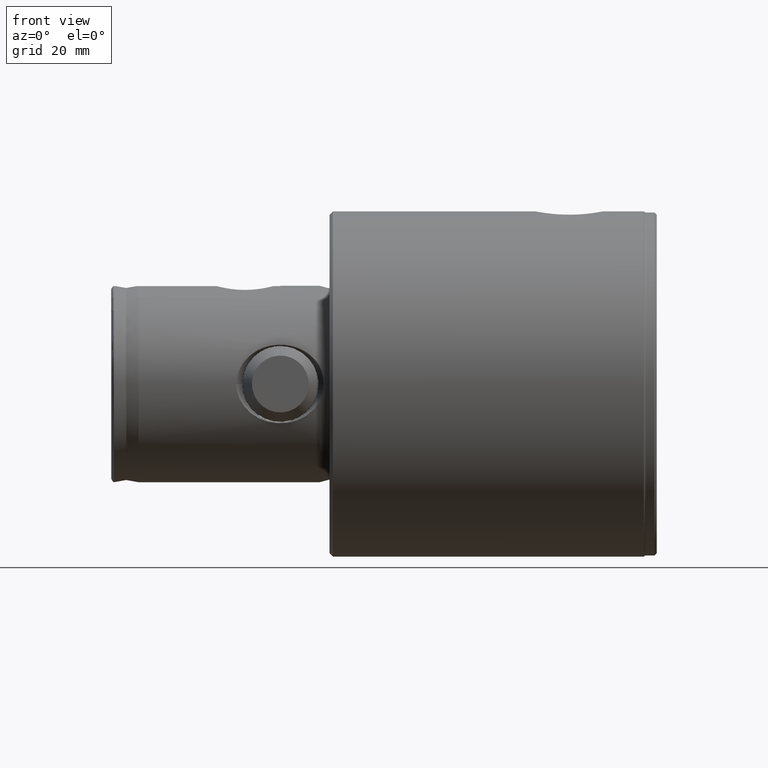
[diagram: clean part render]
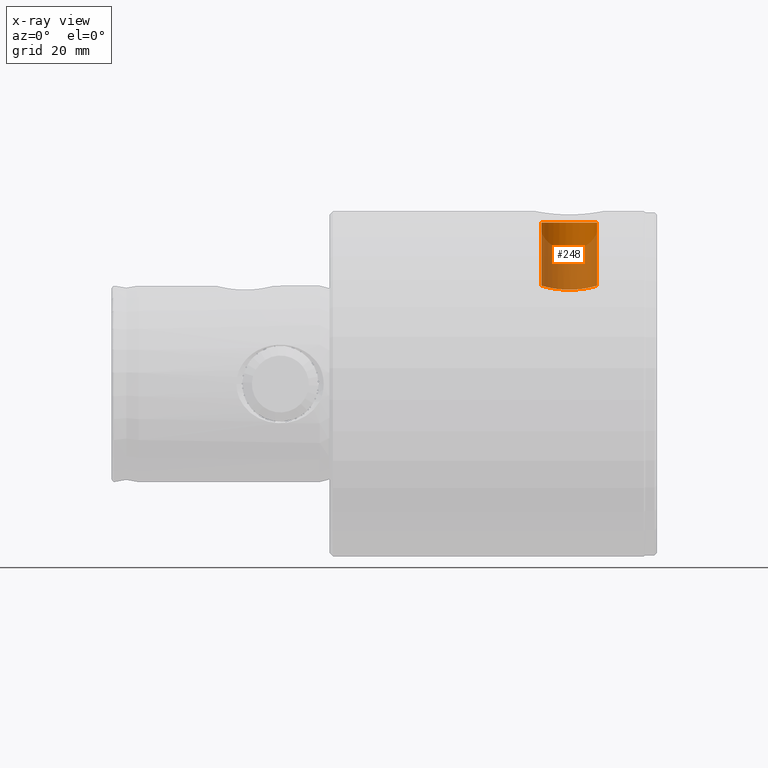
[diagram: x-ray — body ghosted, one internal face saturated and labeled with its STEP entity id]
A machine part, front view, then the same camera in x-ray: the body is ghosted and one INTERNAL B-rep face — a face not visible from any outside direction — is saturated and labeled: STEP entity #248.
In plain terms, the highlighted cylindrical surface (edge-blend (fillet) strip) has radius 5.1 mm, axis along (0, 0, 1).
Its self-contained STEP definition (entity closure, byte-faithful):
#27 = VECTOR ( 'NONE', #1034, 1000.000000000000000 ) ;
#94 = CARTESIAN_POINT ( 'NONE',  ( 18.00000000000000400, -0.3338442102494030300, 21.14999999999999900 ) ) ;
#137 = DIRECTION ( 'NONE',  ( 1.000000000000000000, 0.0000000000000000000, 0.0000000000000000000 ) ) ;
#161 = VERTEX_POINT ( 'NONE', #789 ) ;
#224 = CARTESIAN_POINT ( 'NONE',  ( 17.85912766816735300, -2.268724460790874500, 11.47029514095245500 ) ) ;
#248 = ADVANCED_FACE ( 'NONE', ( #3206 ), #4044, .F. ) ;
#263 = EDGE_CURVE ( 'NONE', #1975, #161, #2001, .T. ) ;
#391 = EDGE_CURVE ( 'NONE', #3631, #161, #2999, .T. ) ;
#465 = CARTESIAN_POINT ( 'NONE',  ( 18.00000000000000000, 2.204342783269225900E-015, 21.14999999999999500 ) ) ;
#483 = CARTESIAN_POINT ( 'NONE',  ( 17.40819591694167600, -4.579592025483361100, 18.31951482932408500 ) ) ;
#497 = CARTESIAN_POINT ( 'NONE',  ( 17.92695483098804100, -1.649197683809764600, 20.88744524793038300 ) ) ;
#561 = CARTESIAN_POINT ( 'NONE',  ( 18.00000000000000000, -0.3387473233926048800, 10.95000000000001000 ) ) ;
#708 = ORIENTED_EDGE ( 'NONE', *, *, #391, .F. ) ;
#789 = CARTESIAN_POINT ( 'NONE',  ( 29.58500000000000400, 0.0000000000000000000, 10.95000000000000500 ) ) ;
#844 = CARTESIAN_POINT ( 'NONE',  ( 17.30997792808982500, -4.936526019261249200, 14.72611328377569400 ) ) ;
#855 = DIRECTION ( 'NONE',  ( 1.000000000000000000, 0.0000000000000000000, 0.0000000000000000000 ) ) ;
#864 = CARTESIAN_POINT ( 'NONE',  ( 17.73069976286858200, -3.114561254892637800, 20.10215885831398800 ) ) ;
#1034 = DIRECTION ( 'NONE',  ( 1.000000000000000000, 0.0000000000000000000, 0.0000000000000000000 ) ) ;
#1071 = AXIS2_PLACEMENT_3D ( 'NONE', #1952, #855, #4492 ) ;
#1111 = ORIENTED_EDGE ( 'NONE', *, *, #3248, .F. ) ;
#1152 = CARTESIAN_POINT ( 'NONE',  ( 17.33810089164044400, -4.838202731778841000, 17.69777274118747500 ) ) ;
#1165 = CARTESIAN_POINT ( 'NONE',  ( 17.28197034907616100, -5.033354825979009700, 16.88849889735544000 ) ) ;
#1184 = CARTESIAN_POINT ( 'NONE',  ( 31.63500000000000500, 0.0000000000000000000, 16.05000000000000100 ) ) ;
#1275 = CARTESIAN_POINT ( 'NONE',  ( 18.00000000000000000, -3.834901633434925000E-016, 10.95000000000000600 ) ) ;
#1374 = CARTESIAN_POINT ( 'NONE',  ( 31.63500000000000500, 0.0000000000000000000, 10.95000000000000800 ) ) ;
#1375 = CARTESIAN_POINT ( 'NONE',  ( 18.00000000000000000, 2.204342783269225900E-015, 21.14999999999999500 ) ) ;
#1508 = CARTESIAN_POINT ( 'NONE',  ( 17.51622962167500200, -4.146162973283246300, 19.02434174959495300 ) ) ;
#1525 = AXIS2_PLACEMENT_3D ( 'NONE', #1184, #137, #2295 ) ;
#1527 = CARTESIAN_POINT ( 'NONE',  ( 17.27218200838298400, -5.067183998937784900, 15.38245861765180500 ) ) ;
#1557 = CARTESIAN_POINT ( 'NONE',  ( 17.81889637011422800, -2.562252532947606900, 20.47214260069646800 ) ) ;
#1638 = CARTESIAN_POINT ( 'NONE',  ( 17.92649575507016700, -1.654177043228050900, 11.21424715430659800 ) ) ;
#1804 = VECTOR ( 'NONE', #2233, 1000.000000000000000 ) ;
#1868 = CARTESIAN_POINT ( 'NONE',  ( 17.99065721263594100, -0.6680171344535684700, 21.11732521190182200 ) ) ;
#1905 = CARTESIAN_POINT ( 'NONE',  ( 17.85975306561507400, -2.263798345220251000, 20.63213340914314700 ) ) ;
#1919 = CARTESIAN_POINT ( 'NONE',  ( 18.00000000000000000, -3.834901633434925000E-016, 10.95000000000000600 ) ) ;
#1926 = CARTESIAN_POINT ( 'NONE',  ( 17.44853818666630800, -4.425522410139371300, 13.49324165971595600 ) ) ;
#1943 = CARTESIAN_POINT ( 'NONE',  ( 17.61116973544918500, -3.723052004857397600, 19.53949075831343800 ) ) ;
#1952 = CARTESIAN_POINT ( 'NONE',  ( 29.58500000000000400, 0.0000000000000000000, 16.05000000000000100 ) ) ;
#1975 = VERTEX_POINT ( 'NONE', #3263 ) ;
#2001 = CIRCLE ( 'NONE', #1071, 5.099999999999997000 ) ;
#2015 = CARTESIAN_POINT ( 'NONE',  ( 17.72954917747651700, -3.111297368658496200, 12.00555361979740400 ) ) ;
#2038 = VERTEX_POINT ( 'NONE', #1375 ) ;
#2233 = DIRECTION ( 'NONE',  ( 1.000000000000000000, 0.0000000000000000000, 0.0000000000000000000 ) ) ;
#2283 = CARTESIAN_POINT ( 'NONE',  ( 17.33830747550920400, -4.837415236266129300, 14.40071905487750900 ) ) ;
#2295 = DIRECTION ( 'NONE',  ( 0.0000000000000000000, 0.0000000000000000000, -1.000000000000000000 ) ) ;
#2306 = CARTESIAN_POINT ( 'NONE',  ( 17.58688853696672500, -3.841647712180428400, 12.67937924771728000 ) ) ;
#2420 = B_SPLINE_CURVE_WITH_KNOTS ( 'NONE', 3,
 ( #465, #94, #1868, #3744, #497, #1905, #1557, #864, #3385, #1943, #2998, #4434, #1508, #3716, #483, #1152, #4452, #1165, #2678, #4117, #3729, #4069, #1527, #844, #2283, #4083, #1926, #4470, #2306, #3406, #4481, #2015, #3098, #3808, #224, #1638, #3853, #2701, #561, #1275 ),
 .UNSPECIFIED., .F., .F.,
 ( 4, 2, 2, 2, 2, 2, 2, 2, 2, 2, 2, 2, 2, 2, 2, 2, 2, 2, 2, 4 ),
 ( 0.01602741325967298500, 0.01702885468443315600, 0.01803029610919332600, 0.01903173753395349600, 0.02003317895871366600, 0.02053389967109375500, 0.02103462038347384300, 0.02203606180823402100, 0.02303750323299419800, 0.02353822394537428600, 0.02403894465775437500, 0.02504038608251455200, 0.02604182750727472900, 0.02704326893203491000, 0.02804471035679508400, 0.02854543106917517600, 0.02904615178155526100, 0.03004759320631543400, 0.03104903463107561200, 0.03205047605583578900 ),
 .UNSPECIFIED. ) ;
#2625 = CARTESIAN_POINT ( 'NONE',  ( 31.63500000000000500, 6.245698675651494900E-016, 21.14999999999999500 ) ) ;
#2678 = CARTESIAN_POINT ( 'NONE',  ( 17.27470280021323000, -5.058156303351080600, 16.72326884982175700 ) ) ;
#2701 = CARTESIAN_POINT ( 'NONE',  ( 17.99044750959527100, -0.6722086106097463500, 10.98342529649621100 ) ) ;
#2998 = CARTESIAN_POINT ( 'NONE',  ( 17.58682773871477400, -3.836042145235294400, 19.41489435361920400 ) ) ;
#2999 = LINE ( 'NONE', #1374, #27 ) ;
#3098 = CARTESIAN_POINT ( 'NONE',  ( 17.75280861736682400, -2.976146442191856900, 11.90508473989565500 ) ) ;
#3206 = FACE_OUTER_BOUND ( 'NONE', #4451, .T. ) ;
#3248 = EDGE_CURVE ( 'NONE', #2038, #3631, #2420, .T. ) ;
#3263 = CARTESIAN_POINT ( 'NONE',  ( 29.58500000000000400, 6.245698675651497900E-016, 21.14999999999999900 ) ) ;
#3339 = ORIENTED_EDGE ( 'NONE', *, *, #3490, .T. ) ;
#3385 = CARTESIAN_POINT ( 'NONE',  ( 17.68331738556827700, -3.370155629633988100, 19.89222578266252800 ) ) ;
#3406 = CARTESIAN_POINT ( 'NONE',  ( 17.65861103380856900, -3.491086184227271300, 12.32848786051255500 ) ) ;
#3490 = EDGE_CURVE ( 'NONE', #2038, #1975, #3883, .T. ) ;
#3631 = VERTEX_POINT ( 'NONE', #1919 ) ;
#3716 = CARTESIAN_POINT ( 'NONE',  ( 17.44933870906141100, -4.422267388741818900, 18.61184623272062700 ) ) ;
#3729 = CARTESIAN_POINT ( 'NONE',  ( 17.26239489785889300, -5.099972783376065500, 16.21892944741554700 ) ) ;
#3744 = CARTESIAN_POINT ( 'NONE',  ( 17.95383785094410100, -1.330300814289869800, 20.98501078404080300 ) ) ;
#3808 = CARTESIAN_POINT ( 'NONE',  ( 17.81912487783384300, -2.560748794603350500, 11.62691891932714400 ) ) ;
#3853 = CARTESIAN_POINT ( 'NONE',  ( 17.95390564706844200, -1.328660237925722600, 11.11474867767430500 ) ) ;
#3883 = LINE ( 'NONE', #2625, #1804 ) ;
#4044 = CYLINDRICAL_SURFACE ( 'NONE', #1525, 5.099999999999993400 ) ;
#4069 = CARTESIAN_POINT ( 'NONE',  ( 17.26237083417247200, -5.100054233703534800, 15.71461214869092000 ) ) ;
#4083 = CARTESIAN_POINT ( 'NONE',  ( 17.40751924174753600, -4.582113718748916900, 13.78616527271604900 ) ) ;
#4117 = CARTESIAN_POINT ( 'NONE',  ( 17.26490338128979100, -5.091504027254976500, 16.38885524006124000 ) ) ;
#4434 = CARTESIAN_POINT ( 'NONE',  ( 17.53939503585205300, -4.047388173572781700, 19.15747201491228000 ) ) ;
#4451 = EDGE_LOOP ( 'NONE', ( #1111, #3339, #4555, #708 ) ) ;
#4452 = CARTESIAN_POINT ( 'NONE',  ( 17.31035567326749500, -4.935202758468158800, 17.37843462507506900 ) ) ;
#4470 = CARTESIAN_POINT ( 'NONE',  ( 17.53881532867599800, -4.052985359065307800, 12.93622873472375000 ) ) ;
#4481 = CARTESIAN_POINT ( 'NONE',  ( 17.68249507172863800, -3.368449701431174500, 12.21708147132196000 ) ) ;
#4492 = DIRECTION ( 'NONE',  ( 0.0000000000000000000, 0.0000000000000000000, -1.000000000000000000 ) ) ;
#4555 = ORIENTED_EDGE ( 'NONE', *, *, #263, .T. ) ;